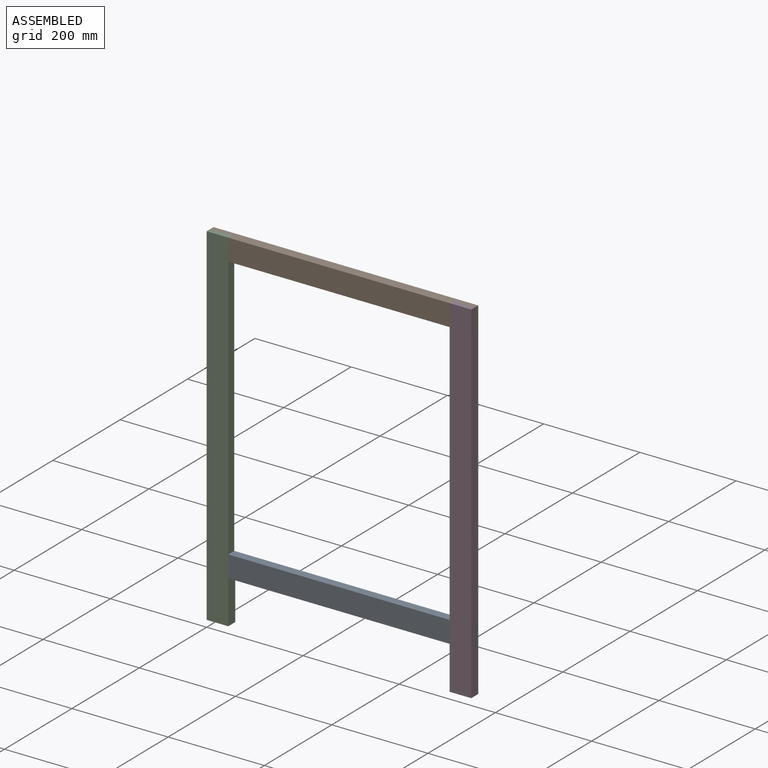
[diagram: assembled view]
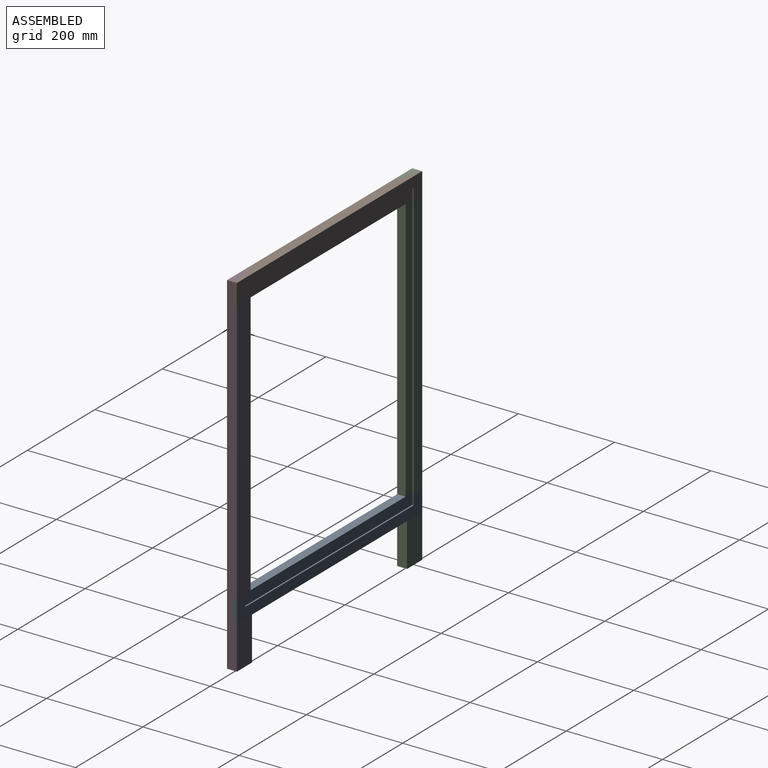
[diagram: assembled view, second angle]
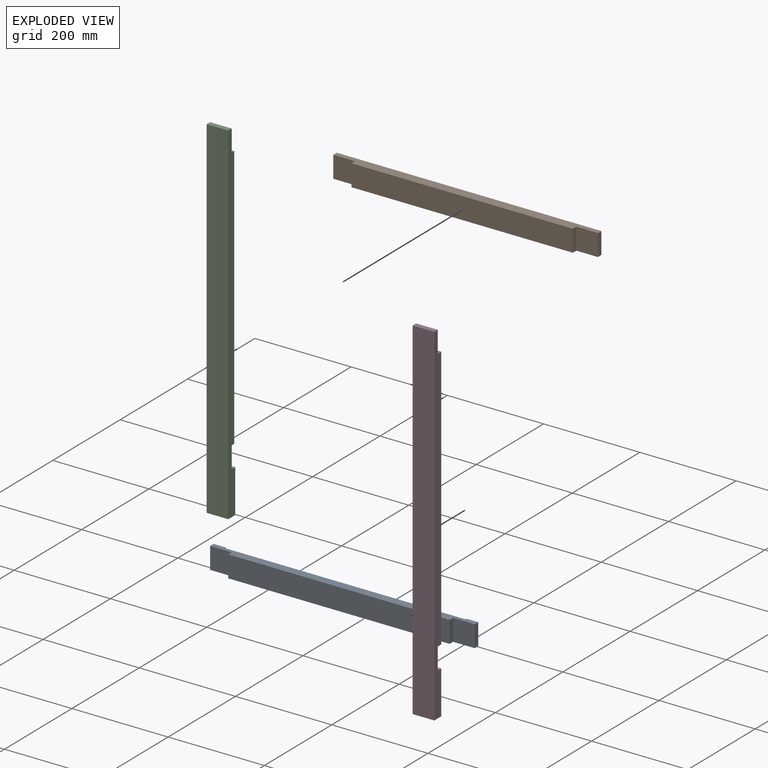
[diagram: exploded view]
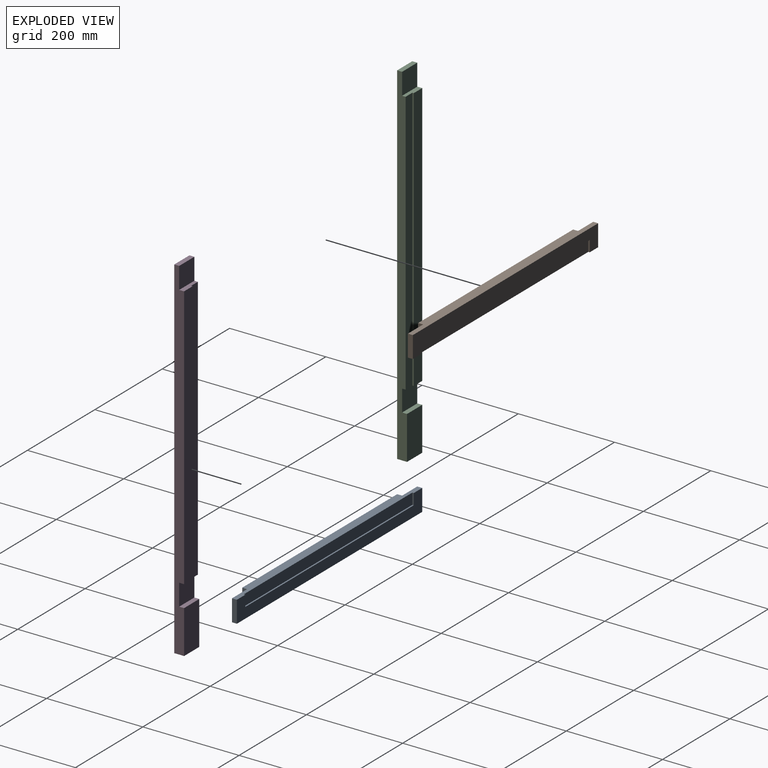
[diagram: exploded view, second angle]
ASSEMBLY  parts=4 mates=3
PART A: 14 faces, bbox 550x20.5x45 mm
  f0: plane 550x20.5mm, normal (0,0,-1), area 8852.5mm2, adj f1,f2,f4,f5,f6,f7,f8,f9
  f1: plane 45x45mm, normal (0,-1,0), area 2025mm2, adj f0,f2,f3,f8
  f2: plane 45x10.25mm, normal (1,0,0), area 461.2mm2, adj f0,f1,f3,f6
  f3: plane 550x20.5mm, normal (0,0,1), area 10352.5mm2, adj f1,f2,f4,f5,f6,f7,f8,f9
  f4: plane 45x10.25mm, normal (-1,0,0), area 461.2mm2, adj f0,f3,f5,f6
  f5: plane 45x45mm, normal (0,-1,0), area 2025mm2, adj f0,f3,f4,f7
  f6: plane 550x45mm, normal (0,1,0), area 13250mm2, adj f0,f2,f3,f4,f10,f11,f13
  f7: plane 45x10.25mm, normal (-1,0,0), area 461.2mm2, adj f0,f3,f5,f9
  f8: plane 45x10.25mm, normal (1,0,0), area 461.2mm2, adj f0,f1,f3,f9
  f9: plane 460x45mm, normal (0,-1,0), area 20700mm2, adj f0,f3,f7,f8
  f10: plane 23x3mm, normal (1,0,0), area 69mm2, adj f0,f6,f12,f13
  f11: plane 23x3mm, normal (-1,0,0), area 69mm2, adj f0,f6,f12,f13
  f12: plane 500x23mm, normal (0,1,0), area 11500mm2, adj f0,f10,f11,f13
  f13: plane 500x3mm, normal (0,0,-1), area 1500mm2, adj f6,f10,f11,f12
PART B: same geometry as A
PART C: 14 faces, bbox 45x20.5x730 mm
  f0: plane 45x10.25mm, normal (0,0,1), area 401.3mm2, adj f2,f3,f4,f11,f12,f13
  f1: plane 45x10.25mm, normal (0,0,-1), area 401.2mm2, adj f2,f3,f4,f5,f12,f13
  f2: plane 730x20.5mm, normal (1,0,0), area 12392.5mm2, adj f0,f1,f5,f6,f7,f8,f9,f10
  f3: plane 730x20.5mm, normal (-1,0,0), area 14042.5mm2, adj f0,f1,f4,f5,f6,f7,f8,f9
  f4: plane 550x25mm, normal (0,1,0), area 13750mm2, adj f0,f1,f3,f12
  f5: plane 45x45mm, normal (0,1,0), area 2025mm2, adj f1,f2,f3,f6
  f6: plane 45x10.25mm, normal (0,0,1), area 461.3mm2, adj f2,f3,f5,f8
  f7: plane 45x20.5mm, normal (0,0,-1), area 922.5mm2, adj f2,f3,f8,f10
  f8: plane 90x45mm, normal (0,1,0), area 4050mm2, adj f2,f3,f6,f7
  f9: plane 45x10.25mm, normal (0,0,1), area 461.2mm2, adj f2,f3,f10,f11
  f10: plane 730x45mm, normal (0,-1,0), area 32850mm2, adj f2,f3,f7,f9
  f11: plane 45x45mm, normal (0,1,0), area 2025mm2, adj f0,f2,f3,f9
  f12: plane 550x3mm, normal (1,0,0), area 1650mm2, adj f0,f1,f4,f13
  f13: plane 550x20mm, normal (0,1,0), area 11000mm2, adj f0,f1,f2,f12
PART D: 14 faces, bbox 45x20.5x730 mm
  f0: plane 550x25mm, normal (0,1,0), area 13750mm2, adj f2,f3,f4,f12
  f1: plane 730x20.5mm, normal (-1,0,0), area 12392.5mm2, adj f2,f3,f5,f6,f7,f8,f9,f10
  f2: plane 45x10.25mm, normal (0,0,1), area 401.3mm2, adj f0,f1,f4,f11,f12,f13
  f3: plane 45x10.25mm, normal (0,0,-1), area 401.3mm2, adj f0,f1,f4,f5,f12,f13
  f4: plane 730x20.5mm, normal (1,0,0), area 14042.5mm2, adj f0,f2,f3,f5,f6,f7,f8,f9
  f5: plane 45x45mm, normal (0,1,0), area 2025mm2, adj f1,f3,f4,f6
  f6: plane 45x10.25mm, normal (0,0,1), area 461.3mm2, adj f1,f4,f5,f8
  f7: plane 45x20.5mm, normal (0,0,-1), area 922.5mm2, adj f1,f4,f8,f10
  f8: plane 90x45mm, normal (0,1,0), area 4050mm2, adj f1,f4,f6,f7
  f9: plane 45x10.25mm, normal (0,0,1), area 461.3mm2, adj f1,f4,f10,f11
  f10: plane 730x45mm, normal (0,-1,0), area 32850mm2, adj f1,f4,f7,f9
  f11: plane 45x45mm, normal (0,1,0), area 2025mm2, adj f1,f2,f4,f9
  f12: plane 550x3mm, normal (-1,0,0), area 1650mm2, adj f0,f2,f3,f13
  f13: plane 550x20mm, normal (0,1,0), area 11000mm2, adj f1,f2,f3,f12
PLACE A rot(axis=(0,1,0),180deg) t=(550,20.5,820)mm
PLACE B t=(0,20.5,0)mm
PLACE C t=(0,20.5,0)mm
PLACE D t=(0,20.5,0)mm
MATE fastened D.f11 <-> B.f1  axis (0,1,0) through (527.5,10.25,707.5)mm
MATE fastened B.f5 <-> C.f11  axis (0,-1,0) through (22.5,10.25,707.5)mm
MATE fastened A.f5 <-> D.f5  axis (0,-1,0) through (527.5,10.25,112.5)mm
